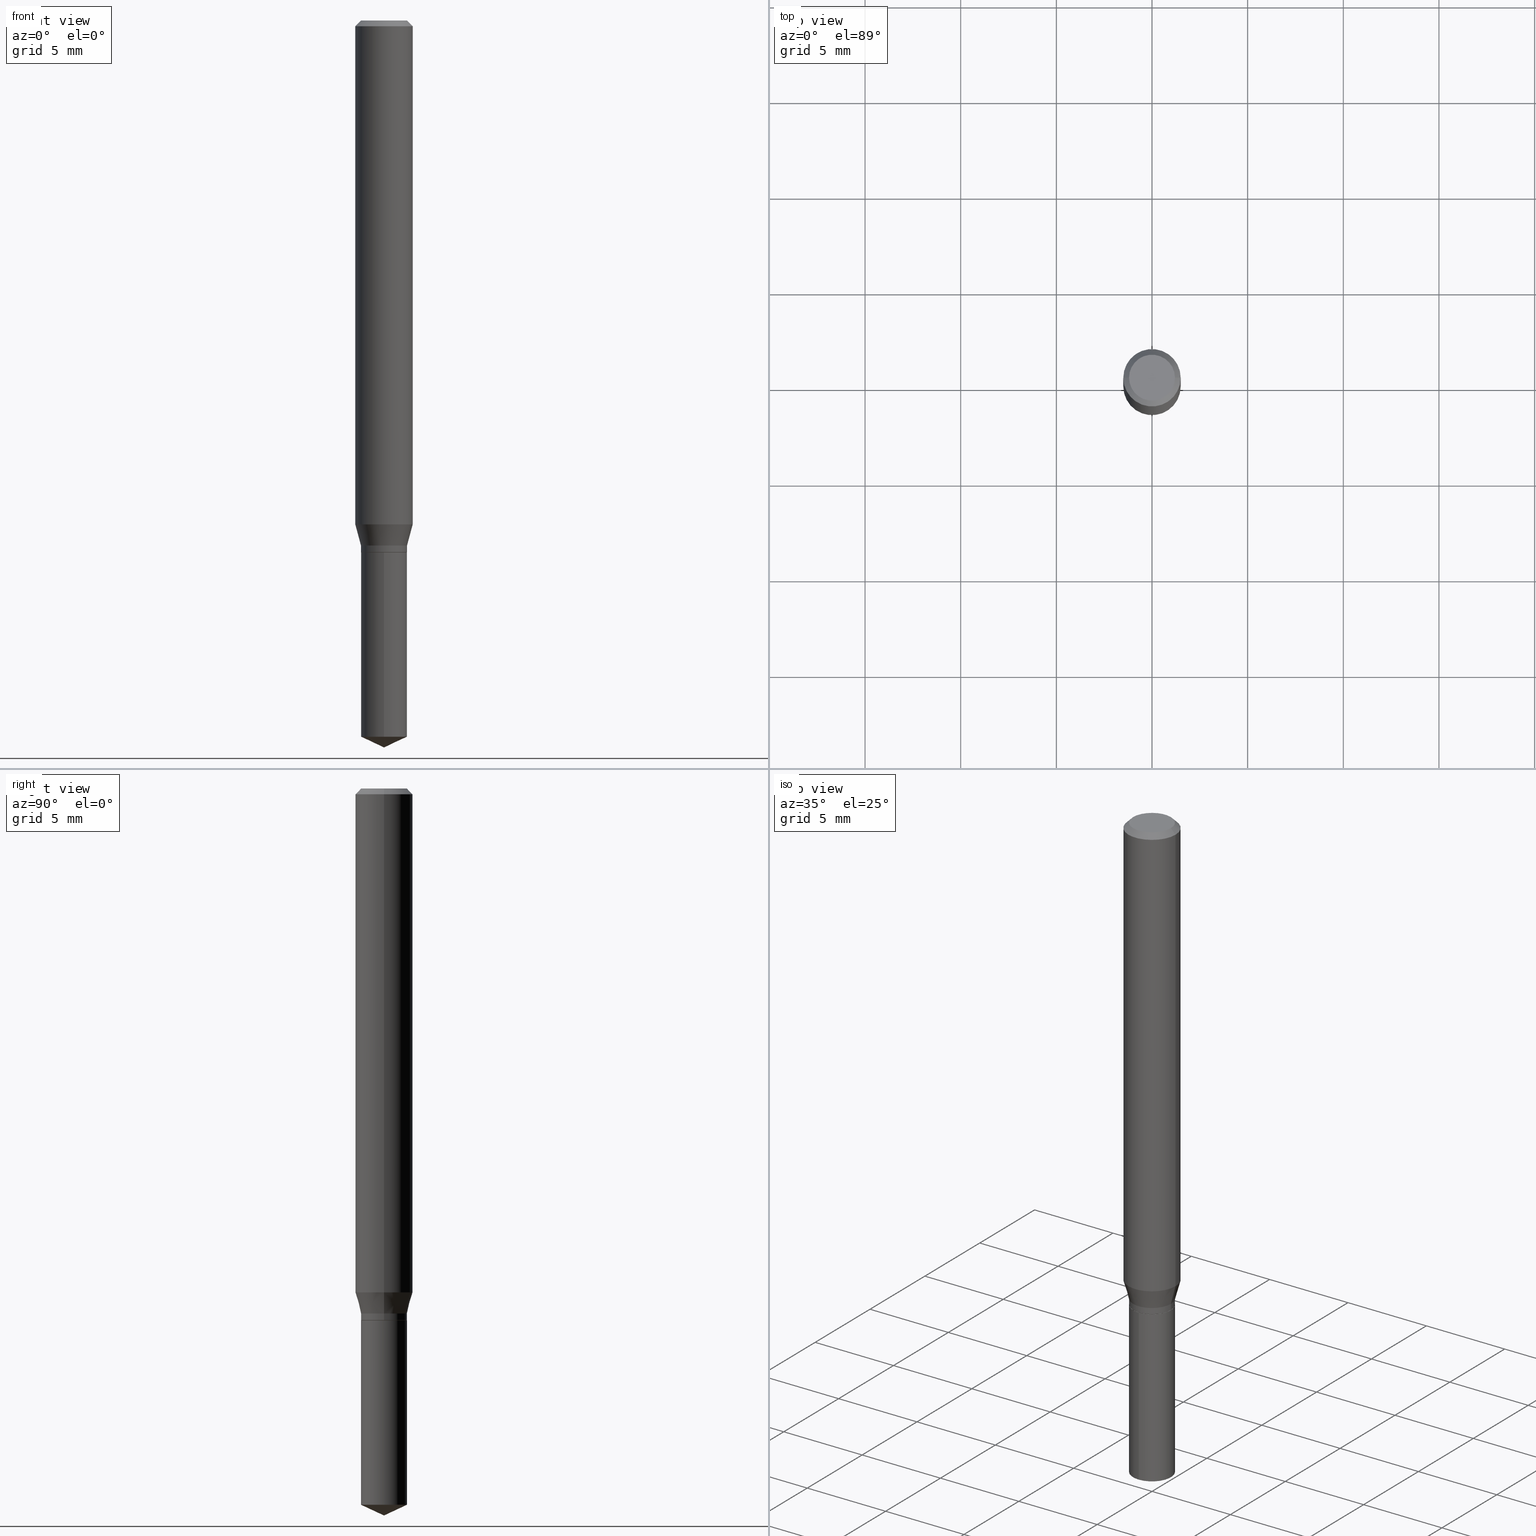
[diagram: canonical four-view strip — front | top / right | iso, engineering-drawing reading convention]
A machine part, canonical four-view strip (front | top / right | iso — engineering-drawing reading convention). The complete STEP part file that produces these views, byte-faithful:
ISO-10303-21;
HEADER;
FILE_DESCRIPTION (( 'STEP AP203' ),
    '1' );
FILE_NAME ('07994.STEP',
    '2024-04-24T08:16:58',
    ( '' ),
    ( '' ),
    'SwSTEP 2.0',
    'SolidWorks 2023',
    '' );
FILE_SCHEMA (( 'CONFIG_CONTROL_DESIGN' ));
ENDSEC;

DATA;
#1 = CARTESIAN_POINT ( 'NONE',  ( 3.371525281181942053E-16, 0.04744999999999616885, -1.094500000000000028 ) ) ;
#2 = ORIENTED_EDGE ( 'NONE', *, *, #378, .T. ) ;
#3 = ORIENTED_EDGE ( 'NONE', *, *, #96, .T. ) ;
#4 = CARTESIAN_POINT ( 'NONE',  ( 0.000000000000000000, 0.000000000000000000, 0.000000000000000000 ) ) ;
#5 = APPROVAL_PERSON_ORGANIZATION ( #269, #324, #51 ) ;
#6 = CARTESIAN_POINT ( 'NONE',  ( 0.000000000000000000, 0.000000000000000000, 0.000000000000000000 ) ) ;
#7 = VERTEX_POINT ( 'NONE', #358 ) ;
#8 = ORIENTED_EDGE ( 'NONE', *, *, #384, .T. ) ;
#9 = DIRECTION ( 'NONE',  ( -2.445468806185136597E-29, 3.491481338843145583E-15, 1.000000000000000000 ) ) ;
#10 = ORIENTED_EDGE ( 'NONE', *, *, #461, .T. ) ;
#11 = ADVANCED_FACE ( 'NONE', ( #18 ), #174, .T. ) ;
#12 = CARTESIAN_POINT ( 'NONE',  ( 0.04744999999999997831, -4.103188869408462916E-15, -1.080300000000000038 ) ) ;
#13 = ORIENTED_EDGE ( 'NONE', *, *, #363, .T. ) ;
#14 = CONICAL_SURFACE ( 'NONE', #69, 0.05904999999999999832, 0.7853981633974452814 ) ;
#15 = ORIENTED_EDGE ( 'NONE', *, *, #419, .T. ) ;
#16 = EDGE_CURVE ( 'NONE', #428, #150, #487, .T. ) ;
#17 = CARTESIAN_POINT ( 'NONE',  ( 2.641839951321803071E-29, -3.771847290352249705E-15, -1.080300000000000038 ) ) ;
#18 = FACE_OUTER_BOUND ( 'NONE', #420, .T. ) ;
#19 = EDGE_CURVE ( 'NONE', #100, #71, #459, .T. ) ;
#20 = LENGTH_MEASURE_WITH_UNIT ( LENGTH_MEASURE( 0.02539999999999999897 ), #236 );
#21 = ORIENTED_EDGE ( 'NONE', *, *, #60, .F. ) ;
#22 = VERTEX_POINT ( 'NONE', #277 ) ;
#23 = VECTOR ( 'NONE', #390, 39.37007874015748854 ) ;
#24 = CC_DESIGN_APPROVAL ( #324, ( #194 ) ) ;
#25 = CARTESIAN_POINT ( 'NONE',  ( 2.675342873966538993E-29, -3.819680584694400481E-15, -1.093999999999999861 ) ) ;
#26 = FACE_OUTER_BOUND ( 'NONE', #164, .T. ) ;
#27 = EDGE_CURVE ( 'NONE', #186, #7, #474, .T. ) ;
#28 = APPROVAL_ROLE ( '' ) ;
#29 = DIRECTION ( 'NONE',  ( -6.982962677686266711E-15, -1.000000000000000000, 2.878659635051911177E-15 ) ) ;
#30 = CALENDAR_DATE ( 2024, 24, 4 ) ;
#31 = CARTESIAN_POINT ( 'NONE',  ( 2.676565608369631794E-29, -3.821426325363822773E-15, -1.094499999999999806 ) ) ;
#32 = DIRECTION ( 'NONE',  ( 1.000000000000000000, -6.982962677686266711E-15, 0.000000000000000000 ) ) ;
#33 = CC_DESIGN_PERSON_AND_ORGANIZATION_ASSIGNMENT ( #395, #87, ( #142 ) ) ;
#34 = DIRECTION ( 'NONE',  ( -2.445468806185136597E-29, 3.491481338843145583E-15, 1.000000000000000000 ) ) ;
#35 = VECTOR ( 'NONE', #170, 39.37007874015748143 ) ;
#36 = CIRCLE ( 'NONE', #75, 0.05904999999999999832 ) ;
#37 = ORIENTED_EDGE ( 'NONE', *, *, #345, .T. ) ;
#38 = DIRECTION ( 'NONE',  ( 1.000000000000000000, -6.982962677686266711E-15, 4.876176775795936353E-29 ) ) ;
#39 = EDGE_CURVE ( 'NONE', #71, #100, #267, .T. ) ;
#40 = ORIENTED_EDGE ( 'NONE', *, *, #145, .T. ) ;
#41 = ORIENTED_EDGE ( 'NONE', *, *, #342, .F. ) ;
#42 = ORIENTED_EDGE ( 'NONE', *, *, #16, .F. ) ;
#43 = AXIS2_PLACEMENT_3D ( 'NONE', #409, #453, #256 ) ;
#44 = ADVANCED_FACE ( 'NONE', ( #168 ), #113, .T. ) ;
#45 = FACE_OUTER_BOUND ( 'NONE', #181, .T. ) ;
#46 = VERTEX_POINT ( 'NONE', #309 ) ;
#47 = CC_DESIGN_DATE_AND_TIME_ASSIGNMENT ( #412, #59, ( #329 ) ) ;
#48 = DIRECTION ( 'NONE',  ( -2.445468806185136597E-29, 3.491481338843145583E-15, 1.000000000000000000 ) ) ;
#49 = APPROVAL_STATUS ( 'not_yet_approved' ) ;
#50 = CARTESIAN_POINT ( 'NONE',  ( -9.261924752013118283E-28, 1.322368428517963298E-13, 37.87397874015748300 ) ) ;
#51 = APPROVAL_ROLE ( '' ) ;
#52 = DIRECTION ( 'NONE',  ( -2.445468806185136597E-29, 3.491481338843145583E-15, 1.000000000000000000 ) ) ;
#53 = CARTESIAN_POINT ( 'NONE',  ( -0.05904999999999999832, 3.711095515056362547E-16, -0.01181000000000006871 ) ) ;
#54 = DIRECTION ( 'NONE',  ( 1.000000000000000000, -6.982962677686264344E-15, 0.000000000000000000 ) ) ;
#55 = CIRCLE ( 'NONE', #366, 0.04744999999999999218 ) ;
#56 = AXIS2_PLACEMENT_3D ( 'NONE', #311, #201, #165 ) ;
#57 = SECURITY_CLASSIFICATION_LEVEL ( 'unclassified' ) ;
#58 = DIRECTION ( 'NONE',  ( 2.445468806185136597E-29, -3.491481338843145583E-15, -1.000000000000000000 ) ) ;
#59 = DATE_TIME_ROLE ( 'classification_date' ) ;
#60 = EDGE_CURVE ( 'NONE', #7, #223, #55, .T. ) ;
#61 = CARTESIAN_POINT ( 'NONE',  ( 2.888098660104663328E-31, -4.123439461173779030E-17, -0.01181000000000006871 ) ) ;
#62 = CARTESIAN_POINT ( 'NONE',  ( 0.000000000000000000, 0.000000000000000000, 0.000000000000000000 ) ) ;
#63 = APPLICATION_CONTEXT ( 'configuration controlled 3d designs of mechanical parts and assemblies' ) ;
#64 = VECTOR ( 'NONE', #471, 39.37007874015748143 ) ;
#65 = CARTESIAN_POINT ( 'NONE',  ( 2.888098660104663328E-31, -4.123439461173779030E-17, -0.01181000000000006871 ) ) ;
#66 = CC_DESIGN_PERSON_AND_ORGANIZATION_ASSIGNMENT ( #248, #444, ( #329 ) ) ;
#67 = DIRECTION ( 'NONE',  ( -1.000000000000000000, 6.982962677686266711E-15, 0.000000000000000000 ) ) ;
#68 = MANIFOLD_SOLID_BREP ( 'Body-Move/Copy2[1]', #351 ) ;
#69 = AXIS2_PLACEMENT_3D ( 'NONE', #61, #58, #365 ) ;
#70 = ORGANIZATION ( 'UNSPECIFIED', 'UNSPECIFIED', '' ) ;
#71 = VERTEX_POINT ( 'NONE', #470 ) ;
#72 = DIRECTION ( 'NONE',  ( 1.000000000000000000, -6.982962677686266711E-15, 4.876176775795936353E-29 ) ) ;
#73 = ORIENTED_EDGE ( 'NONE', *, *, #92, .T. ) ;
#74 = ORIENTED_EDGE ( 'NONE', *, *, #345, .F. ) ;
#75 = AXIS2_PLACEMENT_3D ( 'NONE', #373, #265, #337 ) ;
#76 = ADVANCED_FACE ( 'NONE', ( #86 ), #127, .F. ) ;
#77 = DIRECTION ( 'NONE',  ( -2.445468806185136597E-29, 3.491481338843145583E-15, 1.000000000000000000 ) ) ;
#78 = PLANE ( 'NONE',  #367 ) ;
#79 = LINE ( 'NONE', #314, #35 ) ;
#80 = LINE ( 'NONE', #392, #221 ) ;
#81 = EDGE_CURVE ( 'NONE', #341, #105, #103, .T. ) ;
#82 = DIRECTION ( 'NONE',  ( -6.982962677686266711E-15, -1.000000000000000000, 5.757319270103822354E-15 ) ) ;
#83 = AXIS2_PLACEMENT_3D ( 'NONE', #316, #114, #475 ) ;
#84 = CARTESIAN_POINT ( 'NONE',  ( 0.000000000000000000, 0.000000000000000000, 0.000000000000000000 ) ) ;
#85 = ADVANCED_BREP_SHAPE_REPRESENTATION ( '07994', ( #68, #404, #56 ), #179 ) ;
#86 = FACE_OUTER_BOUND ( 'NONE', #306, .T. ) ;
#87 = PERSON_AND_ORGANIZATION_ROLE ( 'design_owner' ) ;
#88 = ORIENTED_EDGE ( 'NONE', *, *, #120, .F. ) ;
#89 = CALENDAR_DATE ( 2024, 24, 4 ) ;
#90 = CARTESIAN_POINT ( 'NONE',  ( 2.676565608369631794E-29, -3.821426325363822773E-15, -1.094499999999999806 ) ) ;
#91 = ORIENTED_EDGE ( 'NONE', *, *, #39, .T. ) ;
#92 = EDGE_CURVE ( 'NONE', #150, #244, #357, .T. ) ;
#93 = PLANE ( 'NONE',  #166 ) ;
#94 = DIRECTION ( 'NONE',  ( 2.445468806185136597E-29, -3.491481338843145583E-15, -1.000000000000000000 ) ) ;
#95 = LINE ( 'NONE', #138, #307 ) ;
#96 = EDGE_CURVE ( 'NONE', #428, #446, #238, .T. ) ;
#97 = DATE_TIME_ROLE ( 'creation_date' ) ;
#98 = AXIS2_PLACEMENT_3D ( 'NONE', #193, #9, #398 ) ;
#99 = DIRECTION ( 'NONE',  ( 1.000000000000000000, -6.982962677686267499E-15, 0.000000000000000000 ) ) ;
#100 = VERTEX_POINT ( 'NONE', #204 ) ;
#101 = EDGE_CURVE ( 'NONE', #186, #223, #436, .T. ) ;
#102 = EDGE_CURVE ( 'NONE', #266, #350, #124, .T. ) ;
#103 = CIRCLE ( 'NONE', #335, 0.04744999999999997831 ) ;
#104 = CIRCLE ( 'NONE', #394, 0.05904999999999999832 ) ;
#105 = VERTEX_POINT ( 'NONE', #12 ) ;
#106 = APPROVAL_PERSON_ORGANIZATION ( #132, #131, #401 ) ;
#107 = LINE ( 'NONE', #426, #296 ) ;
#108 = ADVANCED_FACE ( 'NONE', ( #198 ), #134, .T. ) ;
#109 = ORIENTED_EDGE ( 'NONE', *, *, #486, .F. ) ;
#110 = CYLINDRICAL_SURFACE ( 'NONE', #149, 0.05905000000000006771 ) ;
#111 = ORIENTED_EDGE ( 'NONE', *, *, #287, .T. ) ;
#112 = CARTESIAN_POINT ( 'NONE',  ( 2.676565608369632355E-29, -3.821426325363822773E-15, -1.094500000000000028 ) ) ;
#113 = CONICAL_SURFACE ( 'NONE', #83, 0.04694999999999999174, 0.7853981633972519916 ) ;
#114 = DIRECTION ( 'NONE',  ( -2.445468806185136597E-29, 3.491481338843145583E-15, 1.000000000000000000 ) ) ;
#115 = AXIS2_PLACEMENT_3D ( 'NONE', #4, #334, #38 ) ;
#116 = LOCAL_TIME ( 4, 16, 58.00000000000000000, #330 ) ;
#117 = CARTESIAN_POINT ( 'NONE',  ( -0.05904999999999999832, -1.411389119664253704E-15, -0.01181000000000006871 ) ) ;
#118 = CARTESIAN_POINT ( 'NONE',  ( 2.676565608369631794E-29, -3.821426325363822773E-15, -1.094499999999999806 ) ) ;
#119 = ORIENTED_EDGE ( 'NONE', *, *, #128, .F. ) ;
#120 = EDGE_CURVE ( 'NONE', #298, #446, #79, .T. ) ;
#121 = DIRECTION ( 'NONE',  ( -6.982962677686267499E-15, -1.000000000000000000, 3.520397390770493707E-15 ) ) ;
#122 = DIRECTION ( 'NONE',  ( 1.000000000000000000, -6.982962677686264344E-15, 0.000000000000000000 ) ) ;
#123 = DIRECTION ( 'NONE',  ( -2.445468806185136597E-29, 3.491481338843145583E-15, 1.000000000000000000 ) ) ;
#124 = CIRCLE ( 'NONE', #468, 0.04744999999999997137 ) ;
#125 = AXIS2_PLACEMENT_3D ( 'NONE', #450, #94, #67 ) ;
#126 = DIRECTION ( 'NONE',  ( -2.445468806185136597E-29, 3.491481338843145583E-15, 1.000000000000000000 ) ) ;
#127 = PLANE ( 'NONE',  #211 ) ;
#128 = EDGE_CURVE ( 'NONE', #223, #22, #95, .T. ) ;
#129 = PERSON_AND_ORGANIZATION_ROLE ( 'creator' ) ;
#130 = DIRECTION ( 'NONE',  ( 0.2588190451025214611, 1.565188264969620982E-15, 0.9659258262890679791 ) ) ;
#131 = APPROVAL ( #322, 'UNSPECIFIED' ) ;
#132 = PERSON_AND_ORGANIZATION ( #140, #70 ) ;
#133 = DIRECTION ( 'NONE',  ( -6.982962677686266711E-15, -1.000000000000000000, 2.878659635051911177E-15 ) ) ;
#134 = CONICAL_SURFACE ( 'NONE', #157, 0.04744999999999997831, 0.2617993877991501850 ) ;
#135 = AXIS2_PLACEMENT_3D ( 'NONE', #90, #136, #133 ) ;
#136 = DIRECTION ( 'NONE',  ( -2.445458899330790108E-29, 3.491495526022433205E-15, 1.000000000000000000 ) ) ;
#137 = ADVANCED_FACE ( 'NONE', ( #286 ), #14, .T. ) ;
#138 = CARTESIAN_POINT ( 'NONE',  ( -3.313415790561865369E-16, -0.04745000000000382245, -1.094499999999999806 ) ) ;
#139 = CARTESIAN_POINT ( 'NONE',  ( -3.313415790561772185E-16, -0.04745000000000514084, -1.473973701620544752 ) ) ;
#140 = PERSON ( 'UNSPECIFIED', 'UNSPECIFIED', 'UNSPECIFIED', ('UNSPECIFIED'), ('UNSPECIFIED'), ('UNSPECIFIED') ) ;
#141 = CIRCLE ( 'NONE', #43, 0.05905000000000013016 ) ;
#142 = PRODUCT ( '07994', '07994', '', ( #313 ) ) ;
#143 = UNCERTAINTY_MEASURE_WITH_UNIT (LENGTH_MEASURE( 1.000000000000000082E-05 ), #276, 'distance_accuracy_value', 'NONE');
#144 = ORIENTED_EDGE ( 'NONE', *, *, #287, .F. ) ;
#145 = EDGE_CURVE ( 'NONE', #105, #147, #360, .T. ) ;
#146 = LINE ( 'NONE', #299, #407 ) ;
#147 = VERTEX_POINT ( 'NONE', #207 ) ;
#148 = DIRECTION ( 'NONE',  ( -6.982962677686266711E-15, -1.000000000000000000, 2.878659635051911177E-15 ) ) ;
#149 = AXIS2_PLACEMENT_3D ( 'NONE', #6, #417, #72 ) ;
#150 = VERTEX_POINT ( 'NONE', #209 ) ;
#151 = PRODUCT_RELATED_PRODUCT_CATEGORY ( 'detail', '', ( #142 ) ) ;
#152 = LINE ( 'NONE', #1, #262 ) ;
#153 = ORIENTED_EDGE ( 'NONE', *, *, #102, .T. ) ;
#154 = APPLICATION_PROTOCOL_DEFINITION ( 'international standard', 'config_control_design', 1994, #63 ) ;
#155 = ORIENTED_EDGE ( 'NONE', *, *, #101, .F. ) ;
#156 = DIRECTION ( 'NONE',  ( 1.000000000000000000, -6.982962677686265133E-15, 0.000000000000000000 ) ) ;
#157 = AXIS2_PLACEMENT_3D ( 'NONE', #163, #273, #158 ) ;
#158 = DIRECTION ( 'NONE',  ( 1.000000000000000000, -6.982962677686267499E-15, 0.000000000000000000 ) ) ;
#159 = CIRCLE ( 'NONE', #376, 0.04724000000000000421 ) ;
#160 = ORIENTED_EDGE ( 'NONE', *, *, #145, .F. ) ;
#161 = CARTESIAN_POINT ( 'NONE',  ( 3.658672935554494692E-29, -5.223595400746700193E-15, -1.496099999999999985 ) ) ;
#162 = ADVANCED_FACE ( 'NONE', ( #445 ), #362, .T. ) ;
#163 = CARTESIAN_POINT ( 'NONE',  ( 2.641839951321803071E-29, -3.771847290352249705E-15, -1.080300000000000038 ) ) ;
#164 = EDGE_LOOP ( 'NONE', ( #15, #8, #109, #391 ) ) ;
#165 = DIRECTION ( 'NONE',  ( 1.000000000000000000, 0.000000000000000000, 0.000000000000000000 ) ) ;
#166 = AXIS2_PLACEMENT_3D ( 'NONE', #478, #284, #215 ) ;
#167 = ADVANCED_FACE ( 'NONE', ( #26 ), #477, .T. ) ;
#168 = FACE_OUTER_BOUND ( 'NONE', #472, .T. ) ;
#169 = DATE_AND_TIME ( #293, #116 ) ;
#170 = DIRECTION ( 'NONE',  ( -2.445468806185136877E-29, 3.491481338843145188E-15, 1.000000000000000000 ) ) ;
#171 = COORDINATED_UNIVERSAL_TIME_OFFSET ( 5, 0, .BEHIND. ) ;
#172 = DIRECTION ( 'NONE',  ( -2.445468806185136597E-29, 3.491481338843145583E-15, 1.000000000000000000 ) ) ;
#173 = EDGE_CURVE ( 'NONE', #46, #22, #352, .T. ) ;
#174 = CONICAL_SURFACE ( 'NONE', #327, 84.42940631927338302, 1.134464013796311566 ) ;
#175 = AXIS2_PLACEMENT_3D ( 'NONE', #84, #466, #389 ) ;
#176 = PERSON_AND_ORGANIZATION_ROLE ( 'design_supplier' ) ;
#177 = DIRECTION ( 'NONE',  ( -2.445468806185136597E-29, 3.491481338843145583E-15, 1.000000000000000000 ) ) ;
#178 = CARTESIAN_POINT ( 'NONE',  ( -0.04744999999999997137, -3.458611409405157610E-15, -1.093999999999999861 ) ) ;
#179 =( GEOMETRIC_REPRESENTATION_CONTEXT ( 3 ) GLOBAL_UNCERTAINTY_ASSIGNED_CONTEXT ( ( #143 ) ) GLOBAL_UNIT_ASSIGNED_CONTEXT ( ( #276, #432, #430 ) ) REPRESENTATION_CONTEXT ( 'NONE', 'WORKASPACE' ) );
#180 = DIRECTION ( 'NONE',  ( -6.982962677686267499E-15, -1.000000000000000000, 3.520397390770493707E-15 ) ) ;
#181 = EDGE_LOOP ( 'NONE', ( #476, #202, #339, #41 ) ) ;
#182 = CARTESIAN_POINT ( 'NONE',  ( -0.04744999999999997831, -3.434694762234082223E-15, -1.080300000000000038 ) ) ;
#183 = ADVANCED_FACE ( 'NONE', ( #326 ), #210, .T. ) ;
#184 = EDGE_LOOP ( 'NONE', ( #425, #281 ) ) ;
#185 = FACE_OUTER_BOUND ( 'NONE', #321, .T. ) ;
#186 = VERTEX_POINT ( 'NONE', #289 ) ;
#187 = ADVANCED_FACE ( 'NONE', ( #481 ), #422, .T. ) ;
#188 = LINE ( 'NONE', #182, #212 ) ;
#189 = CIRCLE ( 'NONE', #239, 0.04744999999999997831 ) ;
#190 = ORIENTED_EDGE ( 'NONE', *, *, #332, .F. ) ;
#191 = ORIENTED_EDGE ( 'NONE', *, *, #173, .T. ) ;
#192 = CARTESIAN_POINT ( 'NONE',  ( 2.676565608369632355E-29, -3.821426325363822773E-15, -1.094500000000000028 ) ) ;
#193 = CARTESIAN_POINT ( 'NONE',  ( 2.675342873966538993E-29, -3.819680584694400481E-15, -1.093999999999999861 ) ) ;
#194 = PRODUCT_DEFINITION ( 'UNKNOWN', '', #489, #282 ) ;
#195 = DIRECTION ( 'NONE',  ( 1.000000000000000000, -6.982962677686267499E-15, 0.000000000000000000 ) ) ;
#196 = ORIENTED_EDGE ( 'NONE', *, *, #102, .F. ) ;
#197 = COORDINATED_UNIVERSAL_TIME_OFFSET ( 5, 0, .BEHIND. ) ;
#198 = FACE_OUTER_BOUND ( 'NONE', #232, .T. ) ;
#199 = EDGE_LOOP ( 'NONE', ( #463, #73, #37, #465 ) ) ;
#200 = ADVANCED_FACE ( 'NONE', ( #323 ), #93, .F. ) ;
#201 = DIRECTION ( 'NONE',  ( 0.000000000000000000, 0.000000000000000000, 1.000000000000000000 ) ) ;
#202 = ORIENTED_EDGE ( 'NONE', *, *, #332, .T. ) ;
#203 = PRODUCT_DEFINITION_SHAPE ( 'NONE', 'NONE',  #194 ) ;
#204 = CARTESIAN_POINT ( 'NONE',  ( 0.04694999999999999174, -4.149276423081192976E-15, -1.094500000000000028 ) ) ;
#205 = AXIS2_PLACEMENT_3D ( 'NONE', #424, #126, #156 ) ;
#206 = LOCAL_TIME ( 4, 16, 58.00000000000000000, #451 ) ;
#207 = CARTESIAN_POINT ( 'NONE',  ( 0.05905000000000013016, -4.033038761766825162E-15, -1.037008210632200500 ) ) ;
#208 = DATE_AND_TIME ( #214, #386 ) ;
#209 = CARTESIAN_POINT ( 'NONE',  ( 0.04724000000000000421, -3.852183633974369345E-16, -3.380025165621689721E-19 ) ) ;
#210 = CYLINDRICAL_SURFACE ( 'NONE', #270, 0.04744999999999999218 ) ;
#211 = AXIS2_PLACEMENT_3D ( 'NONE', #118, #312, #235 ) ;
#212 = VECTOR ( 'NONE', #340, 39.37007874015748143 ) ;
#213 = CC_DESIGN_SECURITY_CLASSIFICATION ( #329, ( #489 ) ) ;
#214 = CALENDAR_DATE ( 2024, 24, 4 ) ;
#215 = DIRECTION ( 'NONE',  ( 1.000000000000000000, -6.982962677686265922E-15, 4.876176775795935793E-29 ) ) ;
#216 = CARTESIAN_POINT ( 'NONE',  ( 0.05905000000000006771, -4.123439461173745257E-16, 2.879382386107503723E-30 ) ) ;
#217 = ADVANCED_FACE ( 'NONE', ( #331 ), #255, .T. ) ;
#218 = CARTESIAN_POINT ( 'NONE',  ( -0.04744999999999997831, -3.458611409405157610E-15, -1.080300000000000038 ) ) ;
#219 = EDGE_LOOP ( 'NONE', ( #274, #240, #21 ) ) ;
#220 = AXIS2_PLACEMENT_3D ( 'NONE', #393, #77, #402 ) ;
#221 = VECTOR ( 'NONE', #473, 39.37007874015748143 ) ;
#222 = CARTESIAN_POINT ( 'NONE',  ( -9.261924752013118283E-28, 1.322368428517963298E-13, 37.87397874015748300 ) ) ;
#223 = VERTEX_POINT ( 'NONE', #139 ) ;
#224 = CC_DESIGN_PERSON_AND_ORGANIZATION_ASSIGNMENT ( #290, #129, ( #489 ) ) ;
#225 = ORIENTED_EDGE ( 'NONE', *, *, #291, .F. ) ;
#226 = CYLINDRICAL_SURFACE ( 'NONE', #115, 0.05905000000000006771 ) ;
#227 = ORIENTED_EDGE ( 'NONE', *, *, #257, .T. ) ;
#228 = AXIS2_PLACEMENT_3D ( 'NONE', #112, #234, #122 ) ;
#229 = ORIENTED_EDGE ( 'NONE', *, *, #173, .F. ) ;
#230 = CC_DESIGN_APPROVAL ( #131, ( #489 ) ) ;
#231 = CYLINDRICAL_SURFACE ( 'NONE', #175, 0.04744999999999997831 ) ;
#232 = EDGE_LOOP ( 'NONE', ( #464, #13, #302, #160 ) ) ;
#233 = APPROVAL ( #245, 'UNSPECIFIED' ) ;
#234 = DIRECTION ( 'NONE',  ( -2.445468806185136597E-29, 3.491481338843145583E-15, 1.000000000000000000 ) ) ;
#235 = DIRECTION ( 'NONE',  ( 6.982962677686265922E-15, 1.000000000000000000, -3.491495526022433599E-15 ) ) ;
#236 =( LENGTH_UNIT ( ) NAMED_UNIT ( * ) SI_UNIT ( $, .METRE. ) );
#237 = CLOSED_SHELL ( 'NONE', ( #456, #137, #338, #108, #167, #427, #187, #295, #217, #411, #200, #44 ) ) ;
#238 = LINE ( 'NONE', #53, #414 ) ;
#239 = AXIS2_PLACEMENT_3D ( 'NONE', #17, #272, #435 ) ;
#240 = ORIENTED_EDGE ( 'NONE', *, *, #101, .T. ) ;
#241 = CARTESIAN_POINT ( 'NONE',  ( 8.265746106709734507E-48, -1.180129479067563789E-33, -3.380025165646692144E-19 ) ) ;
#242 = EDGE_CURVE ( 'NONE', #223, #7, #480, .T. ) ;
#243 = DIRECTION ( 'NONE',  ( 2.438088387897960049E-29, -3.491481338843145188E-15, -1.000000000000000000 ) ) ;
#244 = VERTEX_POINT ( 'NONE', #452 ) ;
#245 = APPROVAL_STATUS ( 'not_yet_approved' ) ;
#246 = DIRECTION ( 'NONE',  ( -2.445458899330790108E-29, 3.491495526022433205E-15, 1.000000000000000000 ) ) ;
#247 = AXIS2_PLACEMENT_3D ( 'NONE', #222, #258, #180 ) ;
#248 = PERSON_AND_ORGANIZATION ( #140, #70 ) ;
#249 = DIRECTION ( 'NONE',  ( -6.982962677686266711E-15, -1.000000000000000000, 5.757319270103822354E-15 ) ) ;
#250 = APPROVAL_DATE_TIME ( #253, #324 ) ;
#251 = CC_DESIGN_PERSON_AND_ORGANIZATION_ASSIGNMENT ( #364, #285, ( #194 ) ) ;
#252 = CARTESIAN_POINT ( 'NONE',  ( 3.604552949059590582E-29, -5.146357056815127930E-15, -1.473973701620545196 ) ) ;
#253 = DATE_AND_TIME ( #479, #346 ) ;
#254 = CARTESIAN_POINT ( 'NONE',  ( 0.04744999999999997831, -4.103188869408462916E-15, -1.080300000000000038 ) ) ;
#255 = CONICAL_SURFACE ( 'NONE', #125, 0.05904999999999999832, 0.7853981633974452814 ) ;
#256 = DIRECTION ( 'NONE',  ( 1.000000000000000000, -6.982962677686265133E-15, 0.000000000000000000 ) ) ;
#257 = EDGE_CURVE ( 'NONE', #446, #244, #104, .T. ) ;
#258 = DIRECTION ( 'NONE',  ( -2.445458899330790108E-29, 3.491495526022433205E-15, 1.000000000000000000 ) ) ;
#259 = EDGE_LOOP ( 'NONE', ( #397, #379, #40, #304 ) ) ;
#260 = DIRECTION ( 'NONE',  ( -2.445458899330790108E-29, 3.491495526022433205E-15, 1.000000000000000000 ) ) ;
#261 = ORIENTED_EDGE ( 'NONE', *, *, #342, .T. ) ;
#262 = VECTOR ( 'NONE', #455, 39.37007874015748143 ) ;
#263 = EDGE_LOOP ( 'NONE', ( #264, #347 ) ) ;
#264 = ORIENTED_EDGE ( 'NONE', *, *, #16, .T. ) ;
#265 = DIRECTION ( 'NONE',  ( -2.445468806185136597E-29, 3.491481338843145583E-15, 1.000000000000000000 ) ) ;
#266 = VERTEX_POINT ( 'NONE', #178 ) ;
#267 = CIRCLE ( 'NONE', #220, 0.04694999999999999174 ) ;
#268 = AXIS2_PLACEMENT_3D ( 'NONE', #192, #123, #54 ) ;
#269 = PERSON_AND_ORGANIZATION ( #140, #70 ) ;
#270 = AXIS2_PLACEMENT_3D ( 'NONE', #31, #371, #484 ) ;
#271 = EDGE_LOOP ( 'NONE', ( #381, #2, #225, #119 ) ) ;
#272 = DIRECTION ( 'NONE',  ( -2.445468806185136597E-29, 3.491481338843145583E-15, 1.000000000000000000 ) ) ;
#273 = DIRECTION ( 'NONE',  ( -2.445468806185136597E-29, 3.491481338843145583E-15, 1.000000000000000000 ) ) ;
#274 = ORIENTED_EDGE ( 'NONE', *, *, #27, .F. ) ;
#275 = EDGE_CURVE ( 'NONE', #150, #428, #159, .T. ) ;
#276 =( CONVERSION_BASED_UNIT ( 'INCH', #20 ) LENGTH_UNIT ( ) NAMED_UNIT ( #443 ) );
#277 = CARTESIAN_POINT ( 'NONE',  ( -3.313415790561865369E-16, -0.04745000000000382245, -1.094499999999999806 ) ) ;
#278 = EDGE_CURVE ( 'NONE', #147, #298, #141, .T. ) ;
#279 = DIRECTION ( 'NONE',  ( -2.445468806185136597E-29, 3.491481338843145583E-15, 1.000000000000000000 ) ) ;
#280 = AXIS2_PLACEMENT_3D ( 'NONE', #413, #246, #29 ) ;
#281 = ORIENTED_EDGE ( 'NONE', *, *, #39, .F. ) ;
#282 = DESIGN_CONTEXT ( 'detailed design', #63, 'design' ) ;
#283 = PERSON_AND_ORGANIZATION ( #140, #70 ) ;
#284 = DIRECTION ( 'NONE',  ( -2.438088387897960049E-29, 3.491481338843145188E-15, 1.000000000000000000 ) ) ;
#285 = PERSON_AND_ORGANIZATION_ROLE ( 'creator' ) ;
#286 = FACE_OUTER_BOUND ( 'NONE', #199, .T. ) ;
#287 = EDGE_CURVE ( 'NONE', #147, #244, #416, .T. ) ;
#288 = SHAPE_DEFINITION_REPRESENTATION ( #203, #85 ) ;
#289 = CARTESIAN_POINT ( 'NONE',  ( 3.658651059288794515E-29, -5.223626456482161457E-15, -1.496099999999999985 ) ) ;
#290 = PERSON_AND_ORGANIZATION ( #140, #70 ) ;
#291 = EDGE_CURVE ( 'NONE', #22, #46, #460, .T. ) ;
#292 = DIRECTION ( 'NONE',  ( -2.445458899330790108E-29, 3.491495526022433205E-15, 1.000000000000000000 ) ) ;
#293 = CALENDAR_DATE ( 2024, 24, 4 ) ;
#294 = DIRECTION ( 'NONE',  ( 1.000000000000000000, -6.982962677686266711E-15, 4.876185090822587894E-29 ) ) ;
#295 = ADVANCED_FACE ( 'NONE', ( #185 ), #110, .T. ) ;
#296 = VECTOR ( 'NONE', #297, 39.37007874015748143 ) ;
#297 = DIRECTION ( 'NONE',  ( 0.7071067811864086838, -2.468850131080802401E-15, 0.7071067811866863506 ) ) ;
#298 = VERTEX_POINT ( 'NONE', #387 ) ;
#299 = CARTESIAN_POINT ( 'NONE',  ( -0.04744999999999997831, 3.371525281181673841E-16, -2.334034700325952001E-30 ) ) ;
#300 = ORIENTED_EDGE ( 'NONE', *, *, #128, .T. ) ;
#301 = AXIS2_PLACEMENT_3D ( 'NONE', #320, #260, #148 ) ;
#302 = ORIENTED_EDGE ( 'NONE', *, *, #278, .F. ) ;
#303 = CARTESIAN_POINT ( 'NONE',  ( -0.04694999999999999174, -3.487826510924455795E-15, -1.094500000000000028 ) ) ;
#304 = ORIENTED_EDGE ( 'NONE', *, *, #405, .F. ) ;
#305 = ADVANCED_FACE ( 'NONE', ( #382 ), #438, .T. ) ;
#306 = EDGE_LOOP ( 'NONE', ( #458, #191 ) ) ;
#307 = VECTOR ( 'NONE', #449, 39.37007874015748143 ) ;
#308 = CARTESIAN_POINT ( 'NONE',  ( 4.132873053354867254E-48, -5.900647395337818946E-34, -1.690012582823346072E-19 ) ) ;
#309 = CARTESIAN_POINT ( 'NONE',  ( 3.371525281182035237E-16, 0.04744999999999616885, -1.094500000000000028 ) ) ;
#310 = ORIENTED_EDGE ( 'NONE', *, *, #384, .F. ) ;
#311 = CARTESIAN_POINT ( 'NONE',  ( 0.000000000000000000, 0.000000000000000000, 0.000000000000000000 ) ) ;
#312 = DIRECTION ( 'NONE',  ( 2.445458899330789267E-29, -3.491495526022433599E-15, -1.000000000000000000 ) ) ;
#313 = MECHANICAL_CONTEXT ( 'NONE', #359, 'mechanical' ) ;
#314 = CARTESIAN_POINT ( 'NONE',  ( -0.05905000000000006771, 4.195754854663396409E-16, -2.904631170795525045E-30 ) ) ;
#315 = FACE_OUTER_BOUND ( 'NONE', #263, .T. ) ;
#316 = CARTESIAN_POINT ( 'NONE',  ( 2.676565608369632355E-29, -3.821426325363822773E-15, -1.094500000000000028 ) ) ;
#317 = CIRCLE ( 'NONE', #98, 0.04744999999999997137 ) ;
#318 = LOCAL_TIME ( 4, 16, 58.00000000000000000, #171 ) ;
#319 = APPROVAL_DATE_TIME ( #208, #131 ) ;
#320 = CARTESIAN_POINT ( 'NONE',  ( 2.676565608369631794E-29, -3.821426325363822773E-15, -1.094499999999999806 ) ) ;
#321 = EDGE_LOOP ( 'NONE', ( #88, #437, #111, #400 ) ) ;
#322 = APPROVAL_STATUS ( 'not_yet_approved' ) ;
#323 = FACE_OUTER_BOUND ( 'NONE', #184, .T. ) ;
#324 = APPROVAL ( #49, 'UNSPECIFIED' ) ;
#325 = DATE_AND_TIME ( #30, #318 ) ;
#326 = FACE_OUTER_BOUND ( 'NONE', #271, .T. ) ;
#327 = AXIS2_PLACEMENT_3D ( 'NONE', #50, #440, #121 ) ;
#328 = AXIS2_PLACEMENT_3D ( 'NONE', #252, #292, #249 ) ;
#329 = SECURITY_CLASSIFICATION ( '', '', #57 ) ;
#330 = COORDINATED_UNIVERSAL_TIME_OFFSET ( 5, 0, .BEHIND. ) ;
#331 = FACE_OUTER_BOUND ( 'NONE', #434, .T. ) ;
#332 = EDGE_CURVE ( 'NONE', #71, #266, #377, .T. ) ;
#333 = CARTESIAN_POINT ( 'NONE',  ( 8.265746106709734507E-48, -1.180129479067563789E-33, -3.380025165646692144E-19 ) ) ;
#334 = DIRECTION ( 'NONE',  ( -2.445468806185136597E-29, 3.491481338843145583E-15, 1.000000000000000000 ) ) ;
#335 = AXIS2_PLACEMENT_3D ( 'NONE', #431, #52, #195 ) ;
#336 = AXIS2_PLACEMENT_3D ( 'NONE', #410, #177, #99 ) ;
#337 = DIRECTION ( 'NONE',  ( 1.000000000000000000, -6.982962677686266711E-15, 0.000000000000000000 ) ) ;
#338 = ADVANCED_FACE ( 'NONE', ( #343 ), #226, .T. ) ;
#339 = ORIENTED_EDGE ( 'NONE', *, *, #419, .F. ) ;
#340 = DIRECTION ( 'NONE',  ( -0.2588190451025214611, 5.211531920934550253E-15, 0.9659258262890679791 ) ) ;
#341 = VERTEX_POINT ( 'NONE', #218 ) ;
#342 = EDGE_CURVE ( 'NONE', #100, #350, #107, .T. ) ;
#343 = FACE_OUTER_BOUND ( 'NONE', #490, .T. ) ;
#344 = ORIENTED_EDGE ( 'NONE', *, *, #60, .T. ) ;
#345 = EDGE_CURVE ( 'NONE', #244, #446, #36, .T. ) ;
#346 = LOCAL_TIME ( 4, 16, 58.00000000000000000, #197 ) ;
#347 = ORIENTED_EDGE ( 'NONE', *, *, #275, .T. ) ;
#348 = ORIENTED_EDGE ( 'NONE', *, *, #242, .F. ) ;
#349 = DIRECTION ( 'NONE',  ( 1.000000000000000000, -6.982962677686269077E-15, 0.000000000000000000 ) ) ;
#350 = VERTEX_POINT ( 'NONE', #429 ) ;
#351 = CLOSED_SHELL ( 'NONE', ( #183, #11, #305, #162, #76 ) ) ;
#352 = CIRCLE ( 'NONE', #135, 0.04744999999999999218 ) ;
#353 = CARTESIAN_POINT ( 'NONE',  ( -0.04724000000000000421, 3.504923541997677355E-16, -3.380025165670481712E-19 ) ) ;
#354 = DIRECTION ( 'NONE',  ( -2.445458899330790108E-29, 3.491495526022433205E-15, 1.000000000000000000 ) ) ;
#355 = EDGE_LOOP ( 'NONE', ( #482, #344, #300, #229 ) ) ;
#356 = DIRECTION ( 'NONE',  ( 1.000000000000000000, -6.982962677686266711E-15, 4.876185090822587894E-29 ) ) ;
#357 = LINE ( 'NONE', #467, #64 ) ;
#358 = CARTESIAN_POINT ( 'NONE',  ( 3.371525281182034744E-16, 0.04744999999999483659, -1.473973701620545418 ) ) ;
#359 = APPLICATION_CONTEXT ( 'configuration controlled 3d designs of mechanical parts and assemblies' ) ;
#360 = LINE ( 'NONE', #254, #421 ) ;
#361 = PERSON_AND_ORGANIZATION ( #140, #70 ) ;
#362 = CYLINDRICAL_SURFACE ( 'NONE', #280, 0.04744999999999999218 ) ;
#363 = EDGE_CURVE ( 'NONE', #341, #298, #188, .T. ) ;
#364 = PERSON_AND_ORGANIZATION ( #140, #70 ) ;
#365 = DIRECTION ( 'NONE',  ( -1.000000000000000000, 6.982962677686266711E-15, 0.000000000000000000 ) ) ;
#366 = AXIS2_PLACEMENT_3D ( 'NONE', #399, #354, #82 ) ;
#367 = AXIS2_PLACEMENT_3D ( 'NONE', #308, #243, #469 ) ;
#368 = CC_DESIGN_PERSON_AND_ORGANIZATION_ASSIGNMENT ( #283, #176, ( #489 ) ) ;
#369 = CC_DESIGN_APPROVAL ( #233, ( #329 ) ) ;
#370 = APPROVAL_DATE_TIME ( #325, #233 ) ;
#371 = DIRECTION ( 'NONE',  ( -2.445458899330790108E-29, 3.491495526022433205E-15, 1.000000000000000000 ) ) ;
#372 = DIRECTION ( 'NONE',  ( -2.445468806185136877E-29, 3.491481338843145188E-15, 1.000000000000000000 ) ) ;
#373 = CARTESIAN_POINT ( 'NONE',  ( 2.888098660104663328E-31, -4.123439461173779030E-17, -0.01181000000000006871 ) ) ;
#374 = ORIENTED_EDGE ( 'NONE', *, *, #92, .F. ) ;
#375 = AXIS2_PLACEMENT_3D ( 'NONE', #241, #279, #356 ) ;
#376 = AXIS2_PLACEMENT_3D ( 'NONE', #333, #485, #294 ) ;
#377 = LINE ( 'NONE', #303, #448 ) ;
#378 = EDGE_CURVE ( 'NONE', #7, #46, #152, .T. ) ;
#379 = ORIENTED_EDGE ( 'NONE', *, *, #81, .T. ) ;
#380 = ORIENTED_EDGE ( 'NONE', *, *, #81, .F. ) ;
#381 = ORIENTED_EDGE ( 'NONE', *, *, #242, .T. ) ;
#382 = FACE_OUTER_BOUND ( 'NONE', #219, .T. ) ;
#383 = ORIENTED_EDGE ( 'NONE', *, *, #27, .T. ) ;
#384 = EDGE_CURVE ( 'NONE', #266, #341, #146, .T. ) ;
#385 = CIRCLE ( 'NONE', #205, 0.05905000000000013016 ) ;
#386 = LOCAL_TIME ( 4, 16, 58.00000000000000000, #447 ) ;
#387 = CARTESIAN_POINT ( 'NONE',  ( -0.05905000000000013016, -3.201119330183110355E-15, -1.037008210632200500 ) ) ;
#388 = ORIENTED_EDGE ( 'NONE', *, *, #278, .T. ) ;
#389 = DIRECTION ( 'NONE',  ( 1.000000000000000000, -6.982962677686265922E-15, 4.876176775795935793E-29 ) ) ;
#390 = DIRECTION ( 'NONE',  ( 6.439704144417016154E-15, 0.9063077870366503808, 0.4226182617406986641 ) ) ;
#391 = ORIENTED_EDGE ( 'NONE', *, *, #461, .F. ) ;
#392 = CARTESIAN_POINT ( 'NONE',  ( 0.04744999999999997831, -3.313415790562131610E-16, 2.313745880115170460E-30 ) ) ;
#393 = CARTESIAN_POINT ( 'NONE',  ( 2.676565608369632355E-29, -3.821426325363822773E-15, -1.094500000000000028 ) ) ;
#394 = AXIS2_PLACEMENT_3D ( 'NONE', #65, #34, #32 ) ;
#395 = PERSON_AND_ORGANIZATION ( #140, #70 ) ;
#396 = DIRECTION ( 'NONE',  ( -6.328713451373360701E-15, -0.9063077870366473832, 0.4226182617407049924 ) ) ;
#397 = ORIENTED_EDGE ( 'NONE', *, *, #363, .F. ) ;
#398 = DIRECTION ( 'NONE',  ( 1.000000000000000000, -6.982962677686269077E-15, 0.000000000000000000 ) ) ;
#399 = CARTESIAN_POINT ( 'NONE',  ( 3.604552949059590582E-29, -5.146357056815127930E-15, -1.473973701620545196 ) ) ;
#400 = ORIENTED_EDGE ( 'NONE', *, *, #257, .F. ) ;
#401 = APPROVAL_ROLE ( '' ) ;
#402 = DIRECTION ( 'NONE',  ( 1.000000000000000000, -6.982962677686264344E-15, 0.000000000000000000 ) ) ;
#403 = ORIENTED_EDGE ( 'NONE', *, *, #120, .T. ) ;
#404 = MANIFOLD_SOLID_BREP ( 'Body-Move/Copy2[2]', #237 ) ;
#405 = EDGE_CURVE ( 'NONE', #298, #147, #385, .T. ) ;
#406 = VECTOR ( 'NONE', #396, 39.37007874015748143 ) ;
#407 = VECTOR ( 'NONE', #457, 39.37007874015748143 ) ;
#408 = DIRECTION ( 'NONE',  ( 1.000000000000000000, -6.982962677686265922E-15, 4.876176775795935793E-29 ) ) ;
#409 = CARTESIAN_POINT ( 'NONE',  ( 2.535971230858911945E-29, -3.620694815649450242E-15, -1.037008210632200500 ) ) ;
#410 = CARTESIAN_POINT ( 'NONE',  ( 2.641839951321803071E-29, -3.771847290352249705E-15, -1.080300000000000038 ) ) ;
#411 = ADVANCED_FACE ( 'NONE', ( #315 ), #78, .F. ) ;
#412 = DATE_AND_TIME ( #89, #206 ) ;
#413 = CARTESIAN_POINT ( 'NONE',  ( 2.676565608369631794E-29, -3.821426325363822773E-15, -1.094499999999999806 ) ) ;
#414 = VECTOR ( 'NONE', #442, 39.37007874015748143 ) ;
#415 = VECTOR ( 'NONE', #372, 39.37007874015748143 ) ;
#416 = LINE ( 'NONE', #216, #415 ) ;
#417 = DIRECTION ( 'NONE',  ( -2.445468806185136597E-29, 3.491481338843145583E-15, 1.000000000000000000 ) ) ;
#418 = EDGE_LOOP ( 'NONE', ( #310, #153, #10, #380 ) ) ;
#419 = EDGE_CURVE ( 'NONE', #350, #266, #317, .T. ) ;
#420 = EDGE_LOOP ( 'NONE', ( #155, #383, #348 ) ) ;
#421 = VECTOR ( 'NONE', #130, 39.37007874015748143 ) ;
#422 = CONICAL_SURFACE ( 'NONE', #336, 0.04744999999999997831, 0.2617993877991501850 ) ;
#423 = APPROVAL_PERSON_ORGANIZATION ( #361, #233, #28 ) ;
#424 = CARTESIAN_POINT ( 'NONE',  ( 2.535971230858911945E-29, -3.620694815649450242E-15, -1.037008210632200500 ) ) ;
#425 = ORIENTED_EDGE ( 'NONE', *, *, #19, .F. ) ;
#426 = CARTESIAN_POINT ( 'NONE',  ( 0.04694999999999999174, -4.149276423081192976E-15, -1.094500000000000028 ) ) ;
#427 = ADVANCED_FACE ( 'NONE', ( #439 ), #231, .T. ) ;
#428 = VERTEX_POINT ( 'NONE', #353 ) ;
#429 = CARTESIAN_POINT ( 'NONE',  ( 0.04744999999999997137, -4.151022163750613691E-15, -1.093999999999999861 ) ) ;
#430 =( NAMED_UNIT ( * ) SI_UNIT ( $, .STERADIAN. ) SOLID_ANGLE_UNIT ( ) );
#431 = CARTESIAN_POINT ( 'NONE',  ( 2.641839951321803071E-29, -3.771847290352249705E-15, -1.080300000000000038 ) ) ;
#432 =( NAMED_UNIT ( * ) PLANE_ANGLE_UNIT ( ) SI_UNIT ( $, .RADIAN. ) );
#433 = CARTESIAN_POINT ( 'NONE',  ( 3.658651059288795076E-29, -5.223626456482161457E-15, -1.496099999999999985 ) ) ;
#434 = EDGE_LOOP ( 'NONE', ( #374, #42, #3, #227 ) ) ;
#435 = DIRECTION ( 'NONE',  ( 1.000000000000000000, -6.982962677686267499E-15, 0.000000000000000000 ) ) ;
#436 = LINE ( 'NONE', #433, #406 ) ;
#437 = ORIENTED_EDGE ( 'NONE', *, *, #405, .T. ) ;
#438 = CONICAL_SURFACE ( 'NONE', #247, 84.42940631927338302, 1.134464013796311566 ) ;
#439 = FACE_OUTER_BOUND ( 'NONE', #418, .T. ) ;
#440 = DIRECTION ( 'NONE',  ( -2.445458899330790108E-29, 3.491495526022433205E-15, 1.000000000000000000 ) ) ;
#441 = APPLICATION_PROTOCOL_DEFINITION ( 'international standard', 'config_control_design', 1994, #359 ) ;
#442 = DIRECTION ( 'NONE',  ( -0.7071067811865453523, 2.468850131082234184E-15, -0.7071067811865496822 ) ) ;
#443 = DIMENSIONAL_EXPONENTS ( 1.000000000000000000, 0.000000000000000000, 0.000000000000000000, 0.000000000000000000, 0.000000000000000000, 0.000000000000000000, 0.000000000000000000 ) ;
#444 = PERSON_AND_ORGANIZATION_ROLE ( 'classification_officer' ) ;
#445 = FACE_OUTER_BOUND ( 'NONE', #355, .T. ) ;
#446 = VERTEX_POINT ( 'NONE', #117 ) ;
#447 = COORDINATED_UNIVERSAL_TIME_OFFSET ( 5, 0, .BEHIND. ) ;
#448 = VECTOR ( 'NONE', #462, 39.37007874015748143 ) ;
#449 = DIRECTION ( 'NONE',  ( -2.445458899330790108E-29, 3.491495526022433599E-15, 1.000000000000000000 ) ) ;
#450 = CARTESIAN_POINT ( 'NONE',  ( 2.888098660104663328E-31, -4.123439461173779030E-17, -0.01181000000000006871 ) ) ;
#451 = COORDINATED_UNIVERSAL_TIME_OFFSET ( 5, 0, .BEHIND. ) ;
#452 = CARTESIAN_POINT ( 'NONE',  ( 0.05904999999999999832, -4.535783407291118600E-16, -0.01181000000000006871 ) ) ;
#453 = DIRECTION ( 'NONE',  ( -2.445468806185136597E-29, 3.491481338843145583E-15, 1.000000000000000000 ) ) ;
#454 = CONICAL_SURFACE ( 'NONE', #228, 0.04694999999999999174, 0.7853981633972519916 ) ;
#455 = DIRECTION ( 'NONE',  ( -2.445458899330790108E-29, 3.491495526022433599E-15, 1.000000000000000000 ) ) ;
#456 = ADVANCED_FACE ( 'NONE', ( #45 ), #454, .T. ) ;
#457 = DIRECTION ( 'NONE',  ( -2.445468806185136877E-29, 3.491481338843145188E-15, 1.000000000000000000 ) ) ;
#458 = ORIENTED_EDGE ( 'NONE', *, *, #291, .T. ) ;
#459 = CIRCLE ( 'NONE', #268, 0.04694999999999999174 ) ;
#460 = CIRCLE ( 'NONE', #301, 0.04744999999999999218 ) ;
#461 = EDGE_CURVE ( 'NONE', #350, #105, #80, .T. ) ;
#462 = DIRECTION ( 'NONE',  ( -0.7071067811864086838, 7.493145998869852445E-15, 0.7071067811866863506 ) ) ;
#463 = ORIENTED_EDGE ( 'NONE', *, *, #275, .F. ) ;
#464 = ORIENTED_EDGE ( 'NONE', *, *, #486, .T. ) ;
#465 = ORIENTED_EDGE ( 'NONE', *, *, #96, .F. ) ;
#466 = DIRECTION ( 'NONE',  ( -2.445468806185136597E-29, 3.491481338843145583E-15, 1.000000000000000000 ) ) ;
#467 = CARTESIAN_POINT ( 'NONE',  ( 0.05904999999999999832, -4.463468013801466955E-16, -0.01181000000000006871 ) ) ;
#468 = AXIS2_PLACEMENT_3D ( 'NONE', #25, #48, #349 ) ;
#469 = DIRECTION ( 'NONE',  ( -1.000000000000000000, 6.982962677686265922E-15, -4.876176775795935793E-29 ) ) ;
#470 = CARTESIAN_POINT ( 'NONE',  ( -0.04694999999999999174, -3.485177283750344594E-15, -1.094500000000000028 ) ) ;
#471 = DIRECTION ( 'NONE',  ( 0.7071067811865453523, -7.319954787623248157E-15, -0.7071067811865496822 ) ) ;
#472 = EDGE_LOOP ( 'NONE', ( #190, #91, #261, #196 ) ) ;
#473 = DIRECTION ( 'NONE',  ( -2.445468806185136877E-29, 3.491481338843145188E-15, 1.000000000000000000 ) ) ;
#474 = LINE ( 'NONE', #161, #23 ) ;
#475 = DIRECTION ( 'NONE',  ( 1.000000000000000000, -6.982962677686264344E-15, 0.000000000000000000 ) ) ;
#476 = ORIENTED_EDGE ( 'NONE', *, *, #19, .T. ) ;
#477 = CYLINDRICAL_SURFACE ( 'NONE', #488, 0.04744999999999997831 ) ;
#478 = CARTESIAN_POINT ( 'NONE',  ( 4.530180386399367457E-30, -7.005673001684947290E-15, -1.094500000000000028 ) ) ;
#479 = CALENDAR_DATE ( 2024, 24, 4 ) ;
#480 = CIRCLE ( 'NONE', #328, 0.04744999999999999218 ) ;
#481 = FACE_OUTER_BOUND ( 'NONE', #259, .T. ) ;
#482 = ORIENTED_EDGE ( 'NONE', *, *, #378, .F. ) ;
#483 = CC_DESIGN_DATE_AND_TIME_ASSIGNMENT ( #169, #97, ( #194 ) ) ;
#484 = DIRECTION ( 'NONE',  ( -6.982962677686266711E-15, -1.000000000000000000, 2.878659635051911177E-15 ) ) ;
#485 = DIRECTION ( 'NONE',  ( -2.445468806185136597E-29, 3.491481338843145583E-15, 1.000000000000000000 ) ) ;
#486 = EDGE_CURVE ( 'NONE', #105, #341, #189, .T. ) ;
#487 = CIRCLE ( 'NONE', #375, 0.04724000000000000421 ) ;
#488 = AXIS2_PLACEMENT_3D ( 'NONE', #62, #172, #408 ) ;
#489 = PRODUCT_DEFINITION_FORMATION_WITH_SPECIFIED_SOURCE ( 'ANY', '', #142, .NOT_KNOWN. ) ;
#490 = EDGE_LOOP ( 'NONE', ( #388, #403, #74, #144 ) ) ;
ENDSEC;
END-ISO-10303-21;
